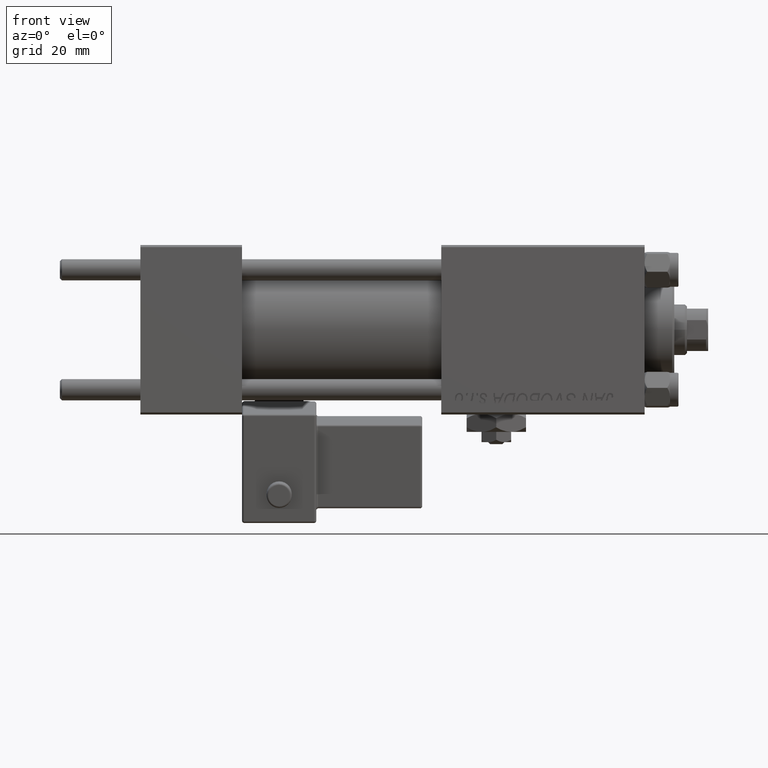
[diagram: clean part render]
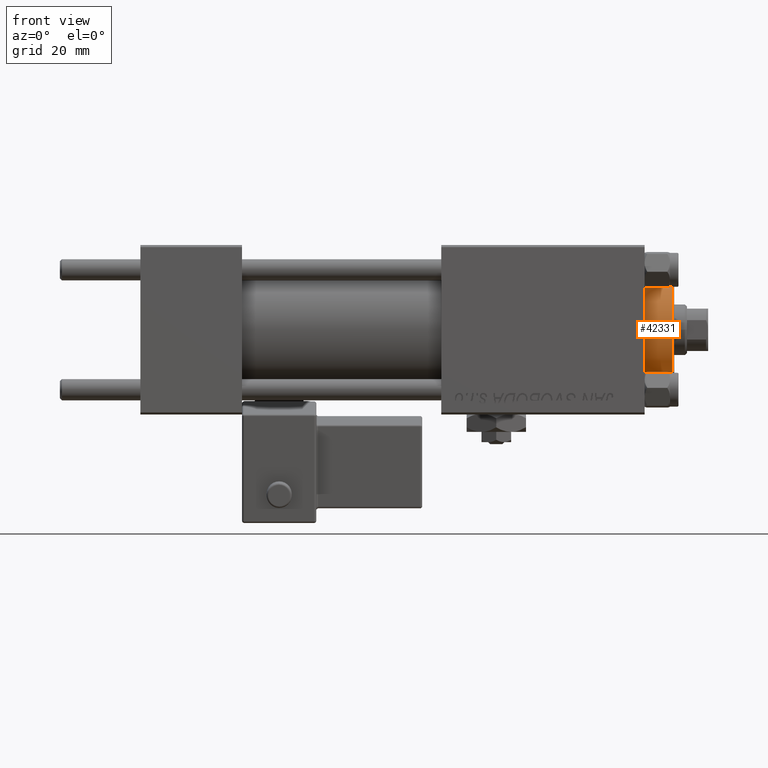
[diagram: same view with one face highlighted and labeled with its STEP entity id]
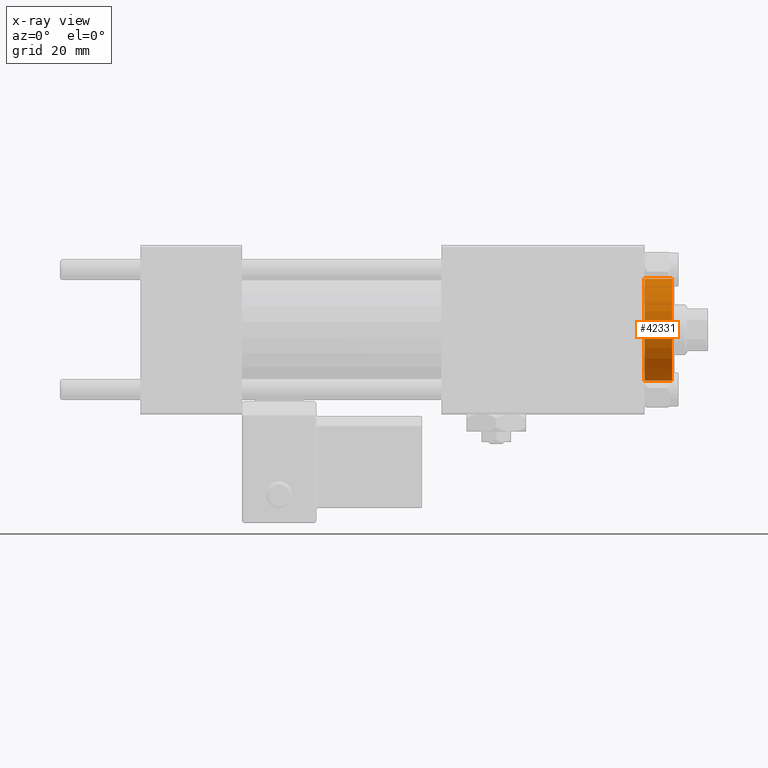
[diagram: x-ray of the same camera — body ghosted, the highlighted face saturated]
A machine part, front view. The second image highlights one B-rep face of the part: STEP entity #42331.
The next image is the same camera in x-ray: the body ghosted, the highlighted face saturated — about 0% of this face is hidden behind the body in this view.
In plain terms, the highlighted cylindrical surface (partial cylindrical patch) has radius 12 mm, axis along (-1, -0, 0).
Its self-contained STEP definition (entity closure, byte-faithful):
#1292 = ORIENTED_EDGE ( 'NONE', *, *, #53402, .T. ) ;
#4904 = DIRECTION ( 'NONE',  ( 1.000000000000000000, 0.000000000000000000, 0.000000000000000000 ) ) ;
#5806 = LINE ( 'NONE', #26773, #20405 ) ;
#6590 = VERTEX_POINT ( 'NONE', #37717 ) ;
#8894 = CARTESIAN_POINT ( 'NONE',  ( -12.00000000000000178, 0.000000000000000000, 35.19999999999999574 ) ) ;
#9249 = CARTESIAN_POINT ( 'NONE',  ( 0.000000000000000000, 0.000000000000000000, 35.70000000000000284 ) ) ;
#11777 = CIRCLE ( 'NONE', #31823, 12.00000000000000178 ) ;
#13049 = DIRECTION ( 'NONE',  ( -1.000000000000000000, 0.000000000000000000, 0.000000000000000000 ) ) ;
#16648 = VERTEX_POINT ( 'NONE', #8894 ) ;
#19391 = DIRECTION ( 'NONE',  ( -0.000000000000000000, -0.000000000000000000, -1.000000000000000000 ) ) ;
#20405 = VECTOR ( 'NONE', #47214, 1000.000000000000000 ) ;
#20728 = DIRECTION ( 'NONE',  ( 1.000000000000000000, 0.000000000000000000, 0.000000000000000000 ) ) ;
#21136 = VECTOR ( 'NONE', #19391, 1000.000000000000000 ) ;
#21873 = LINE ( 'NONE', #44997, #21136 ) ;
#23248 = AXIS2_PLACEMENT_3D ( 'NONE', #30507, #42216, #4904 ) ;
#26773 = CARTESIAN_POINT ( 'NONE',  ( 12.00000000000000178, 1.469576158976824144E-15, 35.70000000000000284 ) ) ;
#27955 = ORIENTED_EDGE ( 'NONE', *, *, #40426, .T. ) ;
#28858 = DIRECTION ( 'NONE',  ( -0.000000000000000000, -0.000000000000000000, -1.000000000000000000 ) ) ;
#30507 = CARTESIAN_POINT ( 'NONE',  ( 0.000000000000000000, 0.000000000000000000, 28.69999999999999929 ) ) ;
#31823 = AXIS2_PLACEMENT_3D ( 'NONE', #44992, #33548, #20728 ) ;
#32365 = ORIENTED_EDGE ( 'NONE', *, *, #45148, .T. ) ;
#33090 = CARTESIAN_POINT ( 'NONE',  ( 12.00000000000000178, 1.469576158976824144E-15, 35.19999999999999574 ) ) ;
#33548 = DIRECTION ( 'NONE',  ( 0.000000000000000000, 0.000000000000000000, -1.000000000000000000 ) ) ;
#33772 = CYLINDRICAL_SURFACE ( 'NONE', #39503, 12.00000000000000178 ) ;
#34629 = VERTEX_POINT ( 'NONE', #33090 ) ;
#37717 = CARTESIAN_POINT ( 'NONE',  ( 12.00000000000000178, 0.000000000000000000, 28.69999999999999929 ) ) ;
#37935 = CARTESIAN_POINT ( 'NONE',  ( -12.00000000000000178, 0.000000000000000000, 28.69999999999999929 ) ) ;
#38559 = ORIENTED_EDGE ( 'NONE', *, *, #44012, .F. ) ;
#39503 = AXIS2_PLACEMENT_3D ( 'NONE', #9249, #28858, #13049 ) ;
#39768 = CIRCLE ( 'NONE', #23248, 12.00000000000000178 ) ;
#40426 = EDGE_CURVE ( 'NONE', #16648, #43911, #21873, .T. ) ;
#41663 = FACE_OUTER_BOUND ( 'NONE', #43325, .T. ) ;
#42216 = DIRECTION ( 'NONE',  ( 0.000000000000000000, 0.000000000000000000, 1.000000000000000000 ) ) ;
#42331 = ADVANCED_FACE ( 'NONE', ( #41663 ), #33772, .T. ) ;
#43325 = EDGE_LOOP ( 'NONE', ( #38559, #32365, #27955, #1292 ) ) ;
#43911 = VERTEX_POINT ( 'NONE', #37935 ) ;
#44012 = EDGE_CURVE ( 'NONE', #34629, #6590, #5806, .T. ) ;
#44992 = CARTESIAN_POINT ( 'NONE',  ( 0.000000000000000000, 0.000000000000000000, 35.19999999999999574 ) ) ;
#44997 = CARTESIAN_POINT ( 'NONE',  ( -12.00000000000000178, 0.000000000000000000, 35.70000000000000284 ) ) ;
#45148 = EDGE_CURVE ( 'NONE', #34629, #16648, #11777, .T. ) ;
#47214 = DIRECTION ( 'NONE',  ( -0.000000000000000000, -0.000000000000000000, -1.000000000000000000 ) ) ;
#53402 = EDGE_CURVE ( 'NONE', #43911, #6590, #39768, .T. ) ;